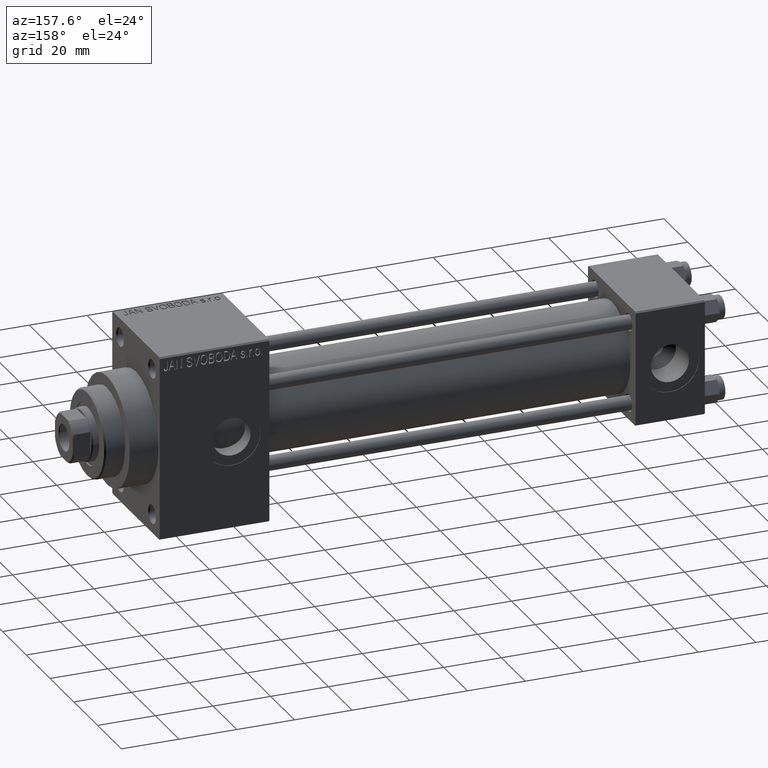
[diagram: clean part render]
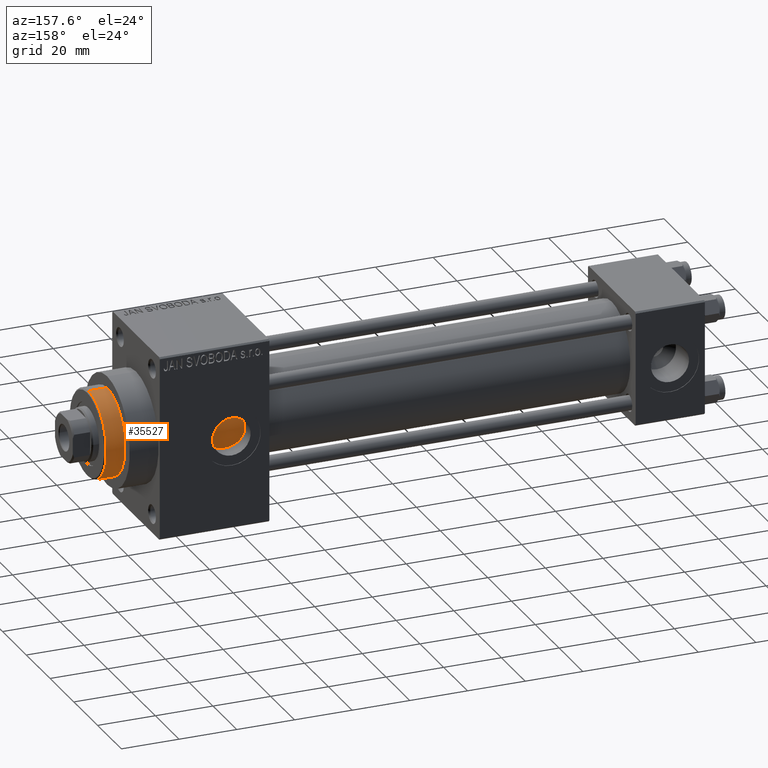
[diagram: same view with one face highlighted and labeled with its STEP entity id]
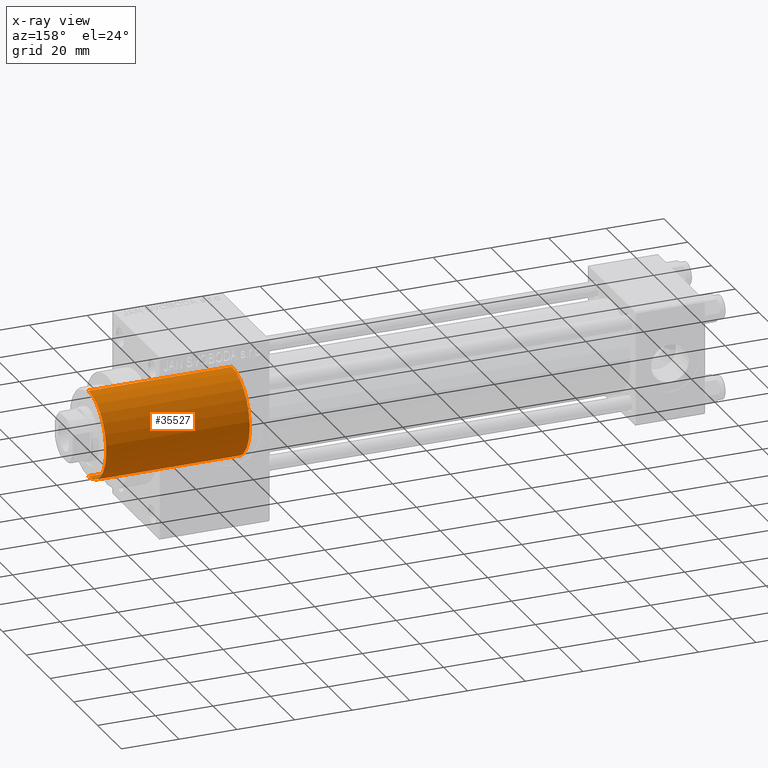
[diagram: x-ray of the same camera — body ghosted, the highlighted face saturated]
A machine part, auxiliary view. The second image highlights one B-rep face of the part: STEP entity #35527.
The next image is the same camera in x-ray: the body ghosted, the highlighted face saturated — about 0% of this face is hidden behind the body in this view.
In plain terms, the highlighted cylindrical surface (partial cylindrical patch) has radius 15 mm, axis along (-1, 0, 0).
Its self-contained STEP definition (entity closure, byte-faithful):
#1331 = VERTEX_POINT ( 'NONE', #10747 ) ;
#1687 = ORIENTED_EDGE ( 'NONE', *, *, #12697, .F. ) ;
#1937 = VECTOR ( 'NONE', #16588, 1000.000000000000000 ) ;
#2098 = EDGE_LOOP ( 'NONE', ( #1687, #23510, #33341, #14178 ) ) ;
#7164 = EDGE_CURVE ( 'NONE', #15227, #43494, #36634, .T. ) ;
#7224 = LINE ( 'NONE', #21970, #7885 ) ;
#7885 = VECTOR ( 'NONE', #36705, 1000.000000000000000 ) ;
#8662 = DIRECTION ( 'NONE',  ( 0.000000000000000000, 0.000000000000000000, 1.000000000000000000 ) ) ;
#9210 = AXIS2_PLACEMENT_3D ( 'NONE', #35015, #17408, #25943 ) ;
#10022 = CARTESIAN_POINT ( 'NONE',  ( 15.00000000000000000, 1.836970198721029589E-15, 0.000000000000000000 ) ) ;
#10747 = CARTESIAN_POINT ( 'NONE',  ( 15.00000000000000000, 1.836970198721029589E-15, 49.75999999999998380 ) ) ;
#11796 = DIRECTION ( 'NONE',  ( -1.000000000000000000, 0.000000000000000000, 0.000000000000000000 ) ) ;
#12697 = EDGE_CURVE ( 'NONE', #1331, #43494, #13017, .T. ) ;
#13017 = LINE ( 'NONE', #26830, #1937 ) ;
#13769 = CIRCLE ( 'NONE', #9210, 15.00000000000000000 ) ;
#14178 = ORIENTED_EDGE ( 'NONE', *, *, #7164, .T. ) ;
#14791 = CARTESIAN_POINT ( 'NONE',  ( -15.00000000000000000, 0.000000000000000000, 0.000000000000000000 ) ) ;
#15227 = VERTEX_POINT ( 'NONE', #14791 ) ;
#15386 = AXIS2_PLACEMENT_3D ( 'NONE', #42206, #8662, #30534 ) ;
#15594 = FACE_OUTER_BOUND ( 'NONE', #2098, .T. ) ;
#16588 = DIRECTION ( 'NONE',  ( -0.000000000000000000, -0.000000000000000000, -1.000000000000000000 ) ) ;
#17382 = VERTEX_POINT ( 'NONE', #37060 ) ;
#17408 = DIRECTION ( 'NONE',  ( 0.000000000000000000, 0.000000000000000000, -1.000000000000000000 ) ) ;
#19620 = CARTESIAN_POINT ( 'NONE',  ( 0.000000000000000000, 0.000000000000000000, 43.25999999999999801 ) ) ;
#21970 = CARTESIAN_POINT ( 'NONE',  ( -15.00000000000000000, 0.000000000000000000, 43.25999999999999801 ) ) ;
#23510 = ORIENTED_EDGE ( 'NONE', *, *, #38586, .T. ) ;
#25943 = DIRECTION ( 'NONE',  ( 1.000000000000000000, 0.000000000000000000, 0.000000000000000000 ) ) ;
#26528 = DIRECTION ( 'NONE',  ( -0.000000000000000000, -0.000000000000000000, -1.000000000000000000 ) ) ;
#26830 = CARTESIAN_POINT ( 'NONE',  ( 15.00000000000000000, 1.836970198721029589E-15, 43.25999999999999801 ) ) ;
#27450 = AXIS2_PLACEMENT_3D ( 'NONE', #19620, #26528, #11796 ) ;
#30534 = DIRECTION ( 'NONE',  ( 1.000000000000000000, 0.000000000000000000, 0.000000000000000000 ) ) ;
#33341 = ORIENTED_EDGE ( 'NONE', *, *, #44538, .T. ) ;
#35015 = CARTESIAN_POINT ( 'NONE',  ( 0.000000000000000000, 0.000000000000000000, 49.75999999999998380 ) ) ;
#35527 = ADVANCED_FACE ( 'NONE', ( #15594 ), #37702, .T. ) ;
#36634 = CIRCLE ( 'NONE', #15386, 15.00000000000000000 ) ;
#36705 = DIRECTION ( 'NONE',  ( -0.000000000000000000, -0.000000000000000000, -1.000000000000000000 ) ) ;
#37060 = CARTESIAN_POINT ( 'NONE',  ( -15.00000000000000000, 0.000000000000000000, 49.75999999999998380 ) ) ;
#37702 = CYLINDRICAL_SURFACE ( 'NONE', #27450, 15.00000000000000000 ) ;
#38586 = EDGE_CURVE ( 'NONE', #1331, #17382, #13769, .T. ) ;
#42206 = CARTESIAN_POINT ( 'NONE',  ( 0.000000000000000000, 0.000000000000000000, 0.000000000000000000 ) ) ;
#43494 = VERTEX_POINT ( 'NONE', #10022 ) ;
#44538 = EDGE_CURVE ( 'NONE', #17382, #15227, #7224, .T. ) ;